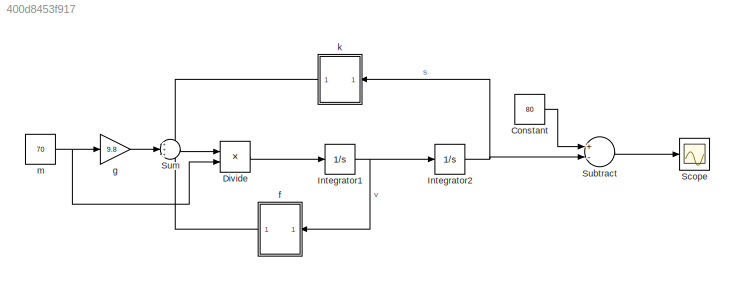
MODEL slx_400d8453f917
KIND model
CONFIG AbsTol = auto
CONFIG EnableMultiTasking = off
CONFIG FixedStep = auto
CONFIG MaxStep = 0.001
CONFIG MinStep = auto
CONFIG RelTol = 1e-3
CONFIG SampleTimeConstraint = Unconstrained
CONFIG Solver = VariableStepAuto
CONFIG SolverName = VariableStepAuto
CONFIG StartTime = 0.0
CONFIG StopTime = 100
BLOCK [Constant] Constant
  Value = 80
BLOCK [Product] Divide
  InputSameDT = off
  Inputs = */
  OutDataTypeStr = Inherit: Inherit via internal rule
  Ports = [2, 1]
  RndMeth = Floor
  SaturateOnIntegerOverflow = off
BLOCK [Integrator] Integrator1
  Ports = [1, 1]
BLOCK [Integrator] Integrator2
  Ports = [1, 1]
BLOCK [Scope] Scope
  Floating = off
  NumInputPorts = 1
  Ports = [1]
  ScopeSpecificationString = Simulink.scopes.TimeScopeBlockCfg('CurrentConfiguration', extmgr.ConfigurationSet(extmgr.Configuration('Core','General UI',true),extmgr.Configuration('Core','Source UI',true),extmgr.Configuration('Sources','WiredSimulink',true),extmgr.Configuration('Visuals','Time Domain',true,'SerializedDisplays',{struct('MinYLimReal','-22.76494','MaxYLimReal','91.41833','YLabelReal','','MinYLimMag','0.00000','Ma...<+1386ch>
BLOCK [Sum] Subtract
  InputSameDT = off
  Inputs = +-
  OutDataTypeStr = Inherit: Inherit via internal rule
  Ports = [2, 1]
  SaturateOnIntegerOverflow = off
BLOCK [Sum] Sum
  IconShape = round
  InputSameDT = off
  Inputs = +++
  OutDataTypeStr = Inherit: Inherit via internal rule
  Ports = [3, 1]
  SaturateOnIntegerOverflow = off
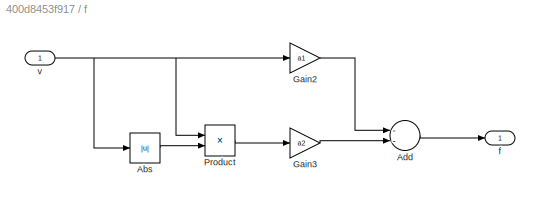
BLOCK [SubSystem] f
  Ports = [1, 1]
  RequestExecContextInheritance = off
BLOCK [Abs] f/Abs
  SaturateOnIntegerOverflow = off
BLOCK [Sum] f/Add
  InputSameDT = off
  Inputs = --
  OutDataTypeStr = Inherit: Inherit via internal rule
  Ports = [2, 1]
  SaturateOnIntegerOverflow = off
BLOCK [Gain] f/Gain2
  Gain = a1
  OutDataTypeStr = Inherit: Inherit via internal rule
  ParamDataTypeStr = Inherit: Inherit via internal rule
  SaturateOnIntegerOverflow = off
BLOCK [Gain] f/Gain3
  Gain = a2
  OutDataTypeStr = Inherit: Inherit via internal rule
  ParamDataTypeStr = Inherit: Inherit via internal rule
  SaturateOnIntegerOverflow = off
BLOCK [Product] f/Product
  InputSameDT = off
  OutDataTypeStr = Inherit: Inherit via internal rule
  Ports = [2, 1]
  RndMeth = Floor
  SaturateOnIntegerOverflow = off
BLOCK [Outport] f/f
  IconDisplay = Port number
BLOCK [Inport] f/v
  IconDisplay = Port number
BLOCK [Gain] g
  Gain = 9.8
  OutDataTypeStr = Inherit: Inherit via internal rule
  ParamDataTypeStr = Inherit: Inherit via internal rule
  SaturateOnIntegerOverflow = off
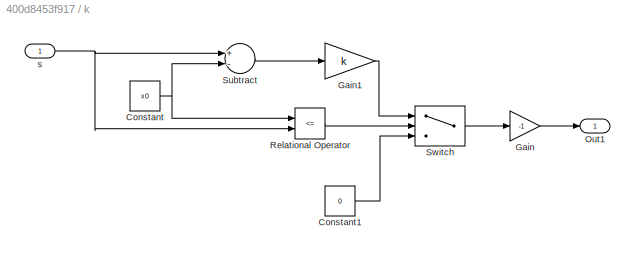
BLOCK [SubSystem] k
  Ports = [1, 1]
  RequestExecContextInheritance = off
BLOCK [Constant] k/Constant
  Value = x0
BLOCK [Constant] k/Constant1
  Value = 0
BLOCK [Gain] k/Gain
  Gain = -1
  OutDataTypeStr = Inherit: Inherit via internal rule
  ParamDataTypeStr = Inherit: Inherit via internal rule
  SaturateOnIntegerOverflow = off
BLOCK [Gain] k/Gain1
  Gain = k
  OutDataTypeStr = Inherit: Inherit via internal rule
  ParamDataTypeStr = Inherit: Inherit via internal rule
  SaturateOnIntegerOverflow = off
BLOCK [Outport] k/Out1
  IconDisplay = Port number
BLOCK [RelationalOperator] k/Relational Operator
  InputSameDT = off
  Operator = <=
  OutDataTypeStr = boolean
  Ports = [2, 1]
  RndMeth = Simplest
BLOCK [Sum] k/Subtract
  InputSameDT = off
  Inputs = +-
  OutDataTypeStr = Inherit: Inherit via internal rule
  Ports = [2, 1]
  SaturateOnIntegerOverflow = off
BLOCK [Switch] k/Switch
  Criteria = u2 > Threshold
  InputSameDT = off
  SaturateOnIntegerOverflow = off
BLOCK [Inport] k/s
  IconDisplay = Port number
BLOCK [Constant] m
  Value = 70
LINE Constant:1 -> Subtract:1
LINE Divide:1 -> Integrator1:1
NET Integrator1:1 -> Integrator2:1, f:1
NET Integrator2:1 -> Subtract:2, k:1
LINE Subtract:1 -> Scope:1
LINE Sum:1 -> Divide:1
LINE f/Abs:1 -> f/Product:2
LINE f/Add:1 -> f/f:1
LINE f/Gain2:1 -> f/Add:1
LINE f/Gain3:1 -> f/Add:2
LINE f/Product:1 -> f/Gain3:1
NET f/v:1 -> f/Abs:1, f/Gain2:1, f/Product:1
LINE f:1 -> Sum:3
LINE g:1 -> Sum:2
LINE k/Constant1:1 -> k/Switch:3
NET k/Constant:1 -> k/Relational Operator:1, k/Subtract:2
LINE k/Gain1:1 -> k/Switch:1
LINE k/Gain:1 -> k/Out1:1
LINE k/Relational Operator:1 -> k/Switch:2
LINE k/Subtract:1 -> k/Gain1:1
LINE k/Switch:1 -> k/Gain:1
NET k/s:1 -> k/Relational Operator:2, k/Subtract:1
LINE k:1 -> Sum:1
NET m:1 -> Divide:2, g:1
note: NET lines group one-source signal fan-out (src -> all destinations, sorted); 1:1 wires keep LINE
